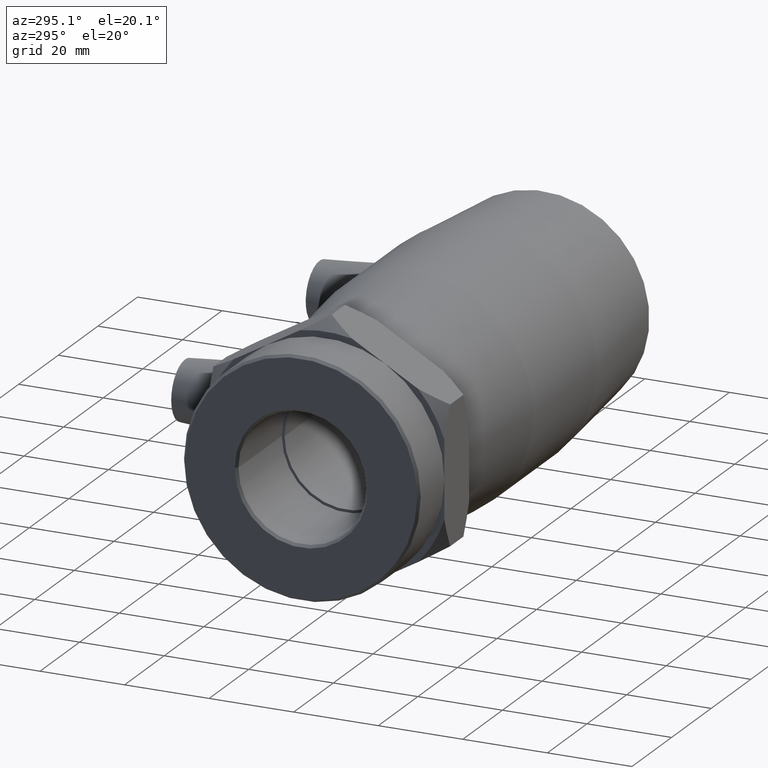
[diagram: clean part render]
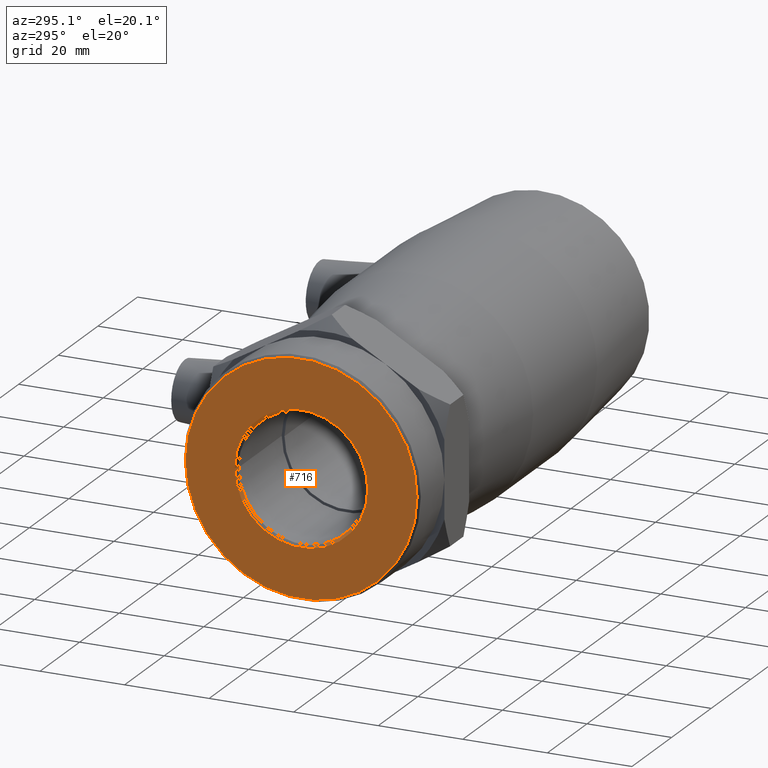
[diagram: same view with one face highlighted and labeled with its STEP entity id]
A machine part, auxiliary view. The second image highlights one B-rep face of the part: STEP entity #716.
In plain terms, the highlighted planar face has unit normal (-1, 0, 0).
Its self-contained STEP definition (entity closure, byte-faithful):
#100=PLANE('',#778);
#127=FACE_BOUND('',#216,.T.);
#157=FACE_OUTER_BOUND('',#215,.T.);
#215=EDGE_LOOP('',(#510));
#216=EDGE_LOOP('',(#511));
#296=CIRCLE('',#777,15.7455);
#297=CIRCLE('',#779,27.4);
#341=VERTEX_POINT('',#1106);
#342=VERTEX_POINT('',#1109);
#412=EDGE_CURVE('',#341,#341,#296,.T.);
#413=EDGE_CURVE('',#342,#342,#297,.T.);
#510=ORIENTED_EDGE('',*,*,#413,.F.);
#511=ORIENTED_EDGE('',*,*,#412,.F.);
#716=ADVANCED_FACE('',(#157,#127),#100,.T.);
#777=AXIS2_PLACEMENT_3D('',#1107,#887,#888);
#778=AXIS2_PLACEMENT_3D('',#1108,#889,#890);
#779=AXIS2_PLACEMENT_3D('',#1110,#891,#892);
#887=DIRECTION('center_axis',(-1.,0.,0.));
#888=DIRECTION('ref_axis',(0.,-1.,0.));
#889=DIRECTION('center_axis',(-1.,0.,0.));
#890=DIRECTION('ref_axis',(0.,0.,1.));
#891=DIRECTION('center_axis',(1.,0.,0.));
#892=DIRECTION('ref_axis',(0.,-1.,0.));
#1106=CARTESIAN_POINT('',(-73.5,15.7455,-1.92826761759746E-15));
#1107=CARTESIAN_POINT('Origin',(-73.5,0.,0.));
#1108=CARTESIAN_POINT('Origin',(-73.5,28.,0.));
#1109=CARTESIAN_POINT('',(-73.5,27.4,3.35553222966375E-15));
#1110=CARTESIAN_POINT('Origin',(-73.5,0.,0.));